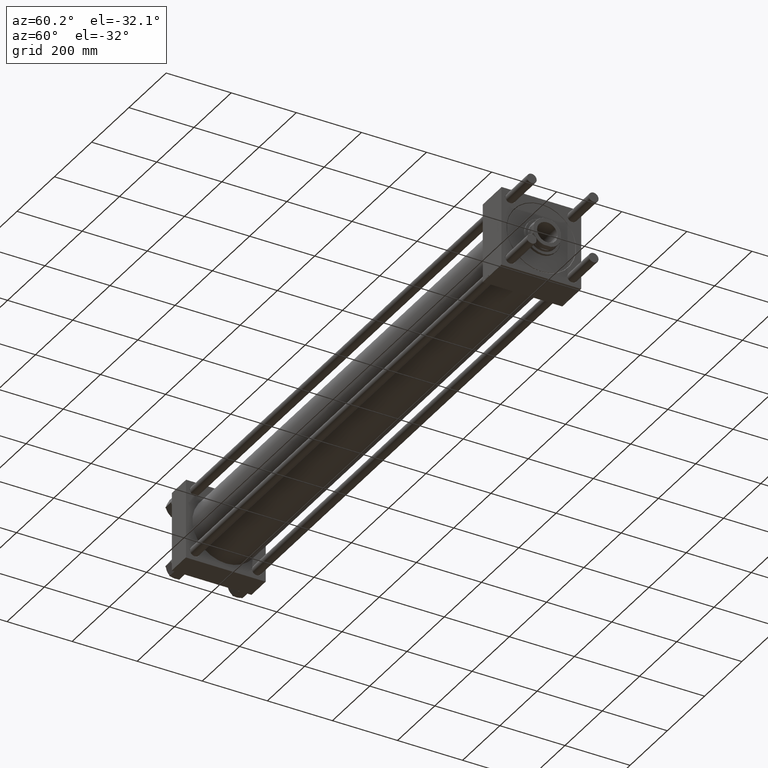
[diagram: clean part render]
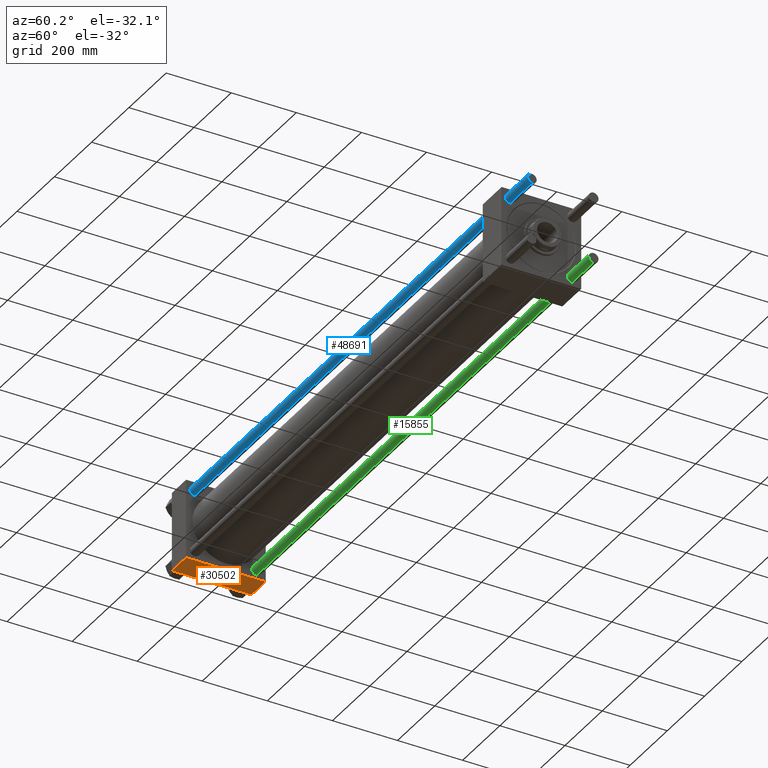
[diagram: same view with three faces highlighted in distinct colors, each labeled with its STEP entity id]
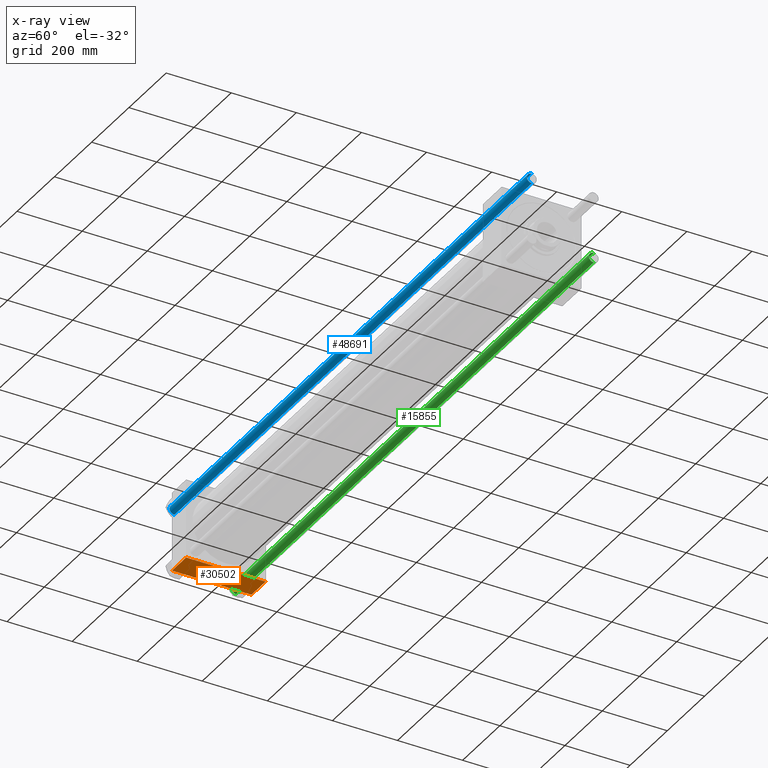
[diagram: x-ray of the same camera — body ghosted, the three highlighted faces saturated]
A machine part, auxiliary view with three faces highlighted in distinct colors.
The next image is the same camera in x-ray (body ghosted, the three faces saturated) — at least one of them is partly hidden behind the body in this view.
Their STEP definitions:

[orange] entity #30502 — the highlighted planar face has unit normal (0, 0, -1).
#1221 = CARTESIAN_POINT ( 'NONE',  ( 0.000000000000000000, -122.0000000000000000, -122.5000000000000568 ) ) ;
#2047 = EDGE_CURVE ( 'NONE', #7691, #20854, #15194, .T. ) ;
#3653 = LINE ( 'NONE', #29137, #11501 ) ;
#7236 = PLANE ( 'NONE',  #21693 ) ;
#7691 = VERTEX_POINT ( 'NONE', #44957 ) ;
#11479 = CARTESIAN_POINT ( 'NONE',  ( 76.00000000000000000, -122.0000000000000000, -122.5000000000000568 ) ) ;
#11501 = VECTOR ( 'NONE', #56318, 1000.000000000000000 ) ;
#15135 = EDGE_LOOP ( 'NONE', ( #49977, #52078, #52064, #56570 ) ) ;
#15194 = LINE ( 'NONE', #46178, #27442 ) ;
#16288 = CARTESIAN_POINT ( 'NONE',  ( 0.000000000000000000, -122.0000000000000000, -122.5000000000000568 ) ) ;
#16739 = DIRECTION ( 'NONE',  ( 0.000000000000000000, 2.265761274745216987E-16, -1.000000000000000000 ) ) ;
#20032 = VERTEX_POINT ( 'NONE', #11479 ) ;
#20100 = VECTOR ( 'NONE', #40961, 1000.000000000000000 ) ;
#20854 = VERTEX_POINT ( 'NONE', #55702 ) ;
#21693 = AXIS2_PLACEMENT_3D ( 'NONE', #38463, #16739, #56119 ) ;
#27442 = VECTOR ( 'NONE', #55134, 1000.000000000000000 ) ;
#29137 = CARTESIAN_POINT ( 'NONE',  ( 0.000000000000000000, 122.5000000000000568, -122.5000000000000000 ) ) ;
#29339 = EDGE_CURVE ( 'NONE', #7691, #49902, #3653, .T. ) ;
#30502 = ADVANCED_FACE ( 'NONE', ( #34412 ), #7236, .T. ) ;
#32174 = DIRECTION ( 'NONE',  ( -1.000000000000000000, 0.000000000000000000, 0.000000000000000000 ) ) ;
#34412 = FACE_OUTER_BOUND ( 'NONE', #15135, .T. ) ;
#37088 = LINE ( 'NONE', #1221, #44722 ) ;
#37293 = EDGE_CURVE ( 'NONE', #20032, #49902, #37088, .T. ) ;
#38463 = CARTESIAN_POINT ( 'NONE',  ( 76.00000000000000000, 122.5000000000000568, -122.5000000000000000 ) ) ;
#40961 = DIRECTION ( 'NONE',  ( 0.000000000000000000, -1.000000000000000000, -2.265761274745216987E-16 ) ) ;
#41235 = LINE ( 'NONE', #49363, #20100 ) ;
#44722 = VECTOR ( 'NONE', #32174, 1000.000000000000000 ) ;
#44957 = CARTESIAN_POINT ( 'NONE',  ( 0.000000000000000000, 122.0000000000000568, -122.5000000000000000 ) ) ;
#46178 = CARTESIAN_POINT ( 'NONE',  ( 76.00000000000000000, 122.0000000000000568, -122.5000000000000000 ) ) ;
#49363 = CARTESIAN_POINT ( 'NONE',  ( 76.00000000000000000, 122.5000000000000568, -122.5000000000000000 ) ) ;
#49902 = VERTEX_POINT ( 'NONE', #16288 ) ;
#49977 = ORIENTED_EDGE ( 'NONE', *, *, #29339, .F. ) ;
#52064 = ORIENTED_EDGE ( 'NONE', *, *, #52720, .T. ) ;
#52078 = ORIENTED_EDGE ( 'NONE', *, *, #2047, .T. ) ;
#52720 = EDGE_CURVE ( 'NONE', #20854, #20032, #41235, .T. ) ;
#55134 = DIRECTION ( 'NONE',  ( 1.000000000000000000, 0.000000000000000000, 0.000000000000000000 ) ) ;
#55702 = CARTESIAN_POINT ( 'NONE',  ( 76.00000000000000000, 122.0000000000000568, -122.5000000000000000 ) ) ;
#56119 = DIRECTION ( 'NONE',  ( 0.000000000000000000, 1.000000000000000000, 2.265761274745216987E-16 ) ) ;
#56318 = DIRECTION ( 'NONE',  ( 0.000000000000000000, -1.000000000000000000, -2.265761274745216987E-16 ) ) ;
#56570 = ORIENTED_EDGE ( 'NONE', *, *, #37293, .T. ) ;

[blue] entity #48691 — the highlighted cylindrical surface (edge-blend (fillet) strip) has radius 15 mm, axis along (-1, 0, -0).
#862 = VERTEX_POINT ( 'NONE', #24956 ) ;
#1441 = LINE ( 'NONE', #27495, #53885 ) ;
#2223 = AXIS2_PLACEMENT_3D ( 'NONE', #56442, #8413, #56161 ) ;
#3074 = CARTESIAN_POINT ( 'NONE',  ( -15.00000000000000000, 0.000000000000000000, 1918.499999999999545 ) ) ;
#6297 = AXIS2_PLACEMENT_3D ( 'NONE', #12163, #16503, #34179 ) ;
#7287 = DIRECTION ( 'NONE',  ( -0.000000000000000000, -0.000000000000000000, -1.000000000000000000 ) ) ;
#7888 = VECTOR ( 'NONE', #7287, 1000.000000000000000 ) ;
#8413 = DIRECTION ( 'NONE',  ( -0.000000000000000000, -0.000000000000000000, 1.000000000000000000 ) ) ;
#11607 = CYLINDRICAL_SURFACE ( 'NONE', #6297, 15.00000000000000000 ) ;
#12163 = CARTESIAN_POINT ( 'NONE',  ( 0.000000000000000000, 0.000000000000000000, 1919.000000000000000 ) ) ;
#15609 = ORIENTED_EDGE ( 'NONE', *, *, #42748, .T. ) ;
#15942 = CARTESIAN_POINT ( 'NONE',  ( 15.00000000000000000, 1.836970198721029589E-15, 1919.000000000000000 ) ) ;
#16503 = DIRECTION ( 'NONE',  ( -0.000000000000000000, -0.000000000000000000, -1.000000000000000000 ) ) ;
#16674 = VERTEX_POINT ( 'NONE', #3074 ) ;
#18567 = VERTEX_POINT ( 'NONE', #56611 ) ;
#24006 = DIRECTION ( 'NONE',  ( 0.000000000000000000, 0.000000000000000000, -1.000000000000000000 ) ) ;
#24956 = CARTESIAN_POINT ( 'NONE',  ( -15.00000000000000000, 0.000000000000000000, 0.5000000000001669775 ) ) ;
#26897 = EDGE_LOOP ( 'NONE', ( #15609, #48752, #57071, #34915 ) ) ;
#27495 = CARTESIAN_POINT ( 'NONE',  ( -15.00000000000000000, 0.000000000000000000, 1919.000000000000000 ) ) ;
#28078 = DIRECTION ( 'NONE',  ( 1.000000000000000000, 0.000000000000000000, 0.000000000000000000 ) ) ;
#28119 = EDGE_CURVE ( 'NONE', #18567, #862, #53027, .T. ) ;
#28363 = CARTESIAN_POINT ( 'NONE',  ( 0.000000000000000000, 0.000000000000000000, 1918.499999999999545 ) ) ;
#33061 = EDGE_CURVE ( 'NONE', #16674, #862, #1441, .T. ) ;
#34179 = DIRECTION ( 'NONE',  ( -1.000000000000000000, 0.000000000000000000, 0.000000000000000000 ) ) ;
#34915 = ORIENTED_EDGE ( 'NONE', *, *, #33061, .F. ) ;
#36289 = VERTEX_POINT ( 'NONE', #49323 ) ;
#39358 = AXIS2_PLACEMENT_3D ( 'NONE', #28363, #24006, #28078 ) ;
#41901 = EDGE_CURVE ( 'NONE', #36289, #18567, #51823, .T. ) ;
#42748 = EDGE_CURVE ( 'NONE', #16674, #36289, #45866, .T. ) ;
#45715 = DIRECTION ( 'NONE',  ( -0.000000000000000000, -0.000000000000000000, -1.000000000000000000 ) ) ;
#45866 = CIRCLE ( 'NONE', #39358, 15.00000000000000000 ) ;
#48691 = ADVANCED_FACE ( 'NONE', ( #56162 ), #11607, .T. ) ;
#48752 = ORIENTED_EDGE ( 'NONE', *, *, #41901, .T. ) ;
#49323 = CARTESIAN_POINT ( 'NONE',  ( 15.00000000000000000, 1.836970198721029589E-15, 1918.499999999999545 ) ) ;
#51823 = LINE ( 'NONE', #15942, #7888 ) ;
#53027 = CIRCLE ( 'NONE', #2223, 15.00000000000000000 ) ;
#53885 = VECTOR ( 'NONE', #45715, 1000.000000000000000 ) ;
#56161 = DIRECTION ( 'NONE',  ( 1.000000000000000000, 0.000000000000000000, 0.000000000000000000 ) ) ;
#56162 = FACE_OUTER_BOUND ( 'NONE', #26897, .T. ) ;
#56442 = CARTESIAN_POINT ( 'NONE',  ( 0.000000000000000000, 0.000000000000000000, 0.5000000000001669775 ) ) ;
#56611 = CARTESIAN_POINT ( 'NONE',  ( 15.00000000000000000, 1.836970198721029589E-15, 0.5000000000001669775 ) ) ;
#57071 = ORIENTED_EDGE ( 'NONE', *, *, #28119, .T. ) ;

[green] entity #15855 — the highlighted cylindrical surface (edge-blend (fillet) strip) has radius 15 mm, axis along (-1, -0, 0).
#862 = VERTEX_POINT ( 'NONE', #24956 ) ;
#1441 = LINE ( 'NONE', #27495, #53885 ) ;
#3074 = CARTESIAN_POINT ( 'NONE',  ( -15.00000000000000000, 0.000000000000000000, 1918.499999999999545 ) ) ;
#5594 = EDGE_CURVE ( 'NONE', #36289, #16674, #6334, .T. ) ;
#6334 = CIRCLE ( 'NONE', #46073, 15.00000000000000000 ) ;
#7287 = DIRECTION ( 'NONE',  ( -0.000000000000000000, -0.000000000000000000, -1.000000000000000000 ) ) ;
#7888 = VECTOR ( 'NONE', #7287, 1000.000000000000000 ) ;
#9398 = AXIS2_PLACEMENT_3D ( 'NONE', #30738, #52733, #17119 ) ;
#10209 = DIRECTION ( 'NONE',  ( 1.000000000000000000, 0.000000000000000000, 0.000000000000000000 ) ) ;
#15855 = ADVANCED_FACE ( 'NONE', ( #51031 ), #46704, .T. ) ;
#15942 = CARTESIAN_POINT ( 'NONE',  ( 15.00000000000000000, 1.836970198721029589E-15, 1919.000000000000000 ) ) ;
#16674 = VERTEX_POINT ( 'NONE', #3074 ) ;
#16938 = CIRCLE ( 'NONE', #25257, 15.00000000000000000 ) ;
#17119 = DIRECTION ( 'NONE',  ( -1.000000000000000000, 0.000000000000000000, 0.000000000000000000 ) ) ;
#18567 = VERTEX_POINT ( 'NONE', #56611 ) ;
#21516 = ORIENTED_EDGE ( 'NONE', *, *, #5594, .T. ) ;
#24956 = CARTESIAN_POINT ( 'NONE',  ( -15.00000000000000000, 0.000000000000000000, 0.5000000000001669775 ) ) ;
#25257 = AXIS2_PLACEMENT_3D ( 'NONE', #25546, #34250, #43213 ) ;
#25546 = CARTESIAN_POINT ( 'NONE',  ( 0.000000000000000000, 0.000000000000000000, 0.5000000000001669775 ) ) ;
#26181 = EDGE_CURVE ( 'NONE', #862, #18567, #16938, .T. ) ;
#27495 = CARTESIAN_POINT ( 'NONE',  ( -15.00000000000000000, 0.000000000000000000, 1919.000000000000000 ) ) ;
#28418 = CARTESIAN_POINT ( 'NONE',  ( 0.000000000000000000, 0.000000000000000000, 1918.499999999999545 ) ) ;
#30738 = CARTESIAN_POINT ( 'NONE',  ( 0.000000000000000000, 0.000000000000000000, 1919.000000000000000 ) ) ;
#31085 = ORIENTED_EDGE ( 'NONE', *, *, #33061, .T. ) ;
#33061 = EDGE_CURVE ( 'NONE', #16674, #862, #1441, .T. ) ;
#34250 = DIRECTION ( 'NONE',  ( -0.000000000000000000, -0.000000000000000000, 1.000000000000000000 ) ) ;
#36289 = VERTEX_POINT ( 'NONE', #49323 ) ;
#36910 = EDGE_LOOP ( 'NONE', ( #46848, #21516, #31085, #54095 ) ) ;
#41901 = EDGE_CURVE ( 'NONE', #36289, #18567, #51823, .T. ) ;
#43213 = DIRECTION ( 'NONE',  ( 1.000000000000000000, 0.000000000000000000, 0.000000000000000000 ) ) ;
#45715 = DIRECTION ( 'NONE',  ( -0.000000000000000000, -0.000000000000000000, -1.000000000000000000 ) ) ;
#46073 = AXIS2_PLACEMENT_3D ( 'NONE', #28418, #46078, #10209 ) ;
#46078 = DIRECTION ( 'NONE',  ( 0.000000000000000000, 0.000000000000000000, -1.000000000000000000 ) ) ;
#46704 = CYLINDRICAL_SURFACE ( 'NONE', #9398, 15.00000000000000000 ) ;
#46848 = ORIENTED_EDGE ( 'NONE', *, *, #41901, .F. ) ;
#49323 = CARTESIAN_POINT ( 'NONE',  ( 15.00000000000000000, 1.836970198721029589E-15, 1918.499999999999545 ) ) ;
#51031 = FACE_OUTER_BOUND ( 'NONE', #36910, .T. ) ;
#51823 = LINE ( 'NONE', #15942, #7888 ) ;
#52733 = DIRECTION ( 'NONE',  ( -0.000000000000000000, -0.000000000000000000, -1.000000000000000000 ) ) ;
#53885 = VECTOR ( 'NONE', #45715, 1000.000000000000000 ) ;
#54095 = ORIENTED_EDGE ( 'NONE', *, *, #26181, .T. ) ;
#56611 = CARTESIAN_POINT ( 'NONE',  ( 15.00000000000000000, 1.836970198721029589E-15, 0.5000000000001669775 ) ) ;